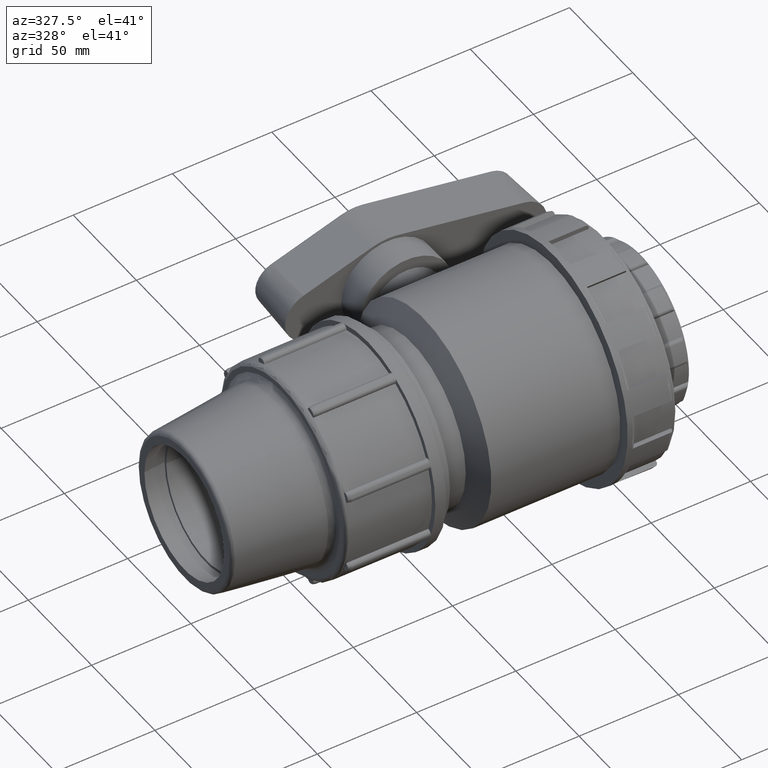
[diagram: clean part render]
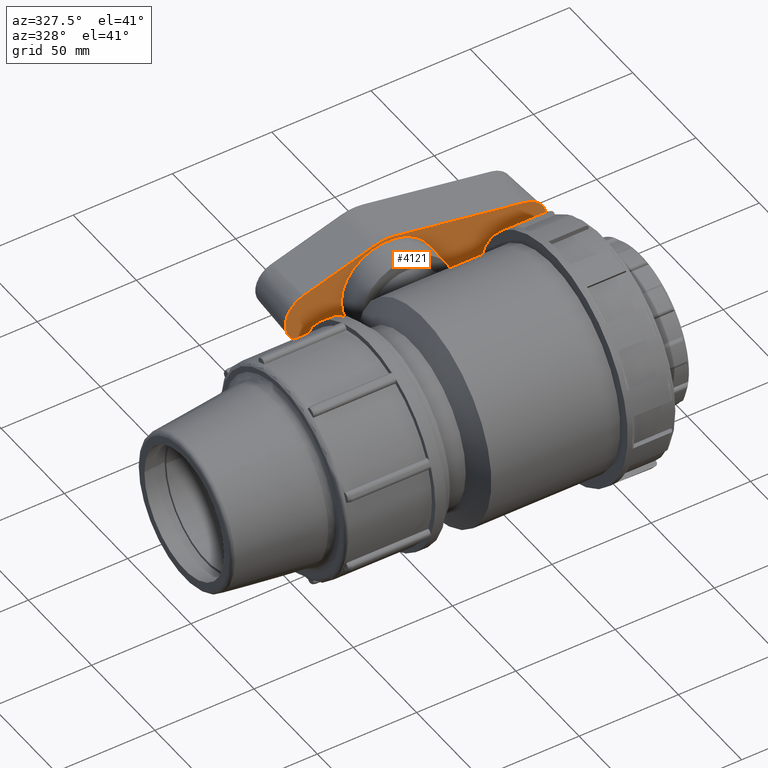
[diagram: same view with one face highlighted and labeled with its STEP entity id]
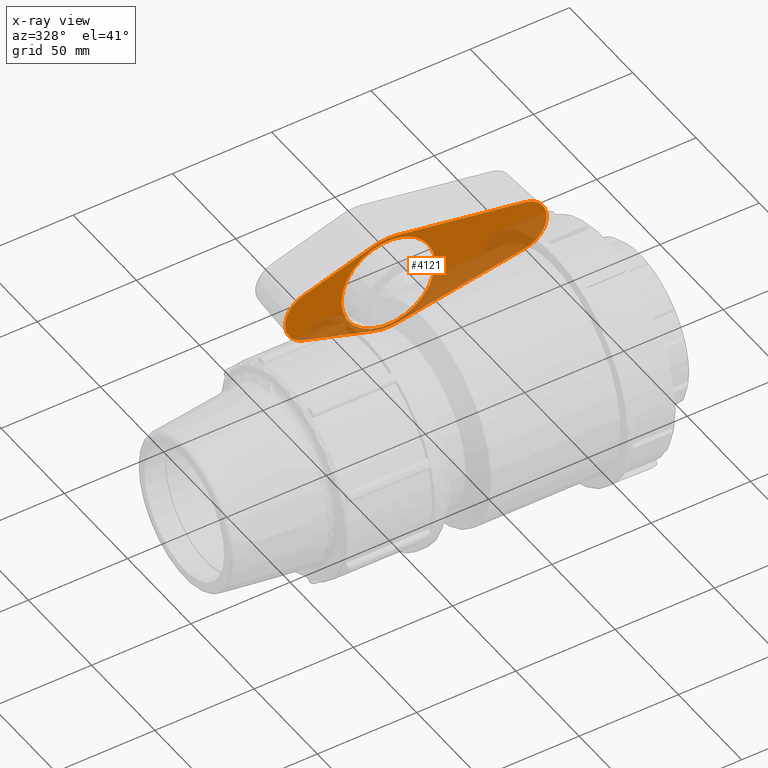
[diagram: x-ray of the same camera — body ghosted, the highlighted face saturated]
A machine part, auxiliary view. The second image highlights one B-rep face of the part: STEP entity #4121.
The next image is the same camera in x-ray: the body ghosted, the highlighted face saturated — about 40% of this face is hidden behind the body in this view.
In plain terms, the highlighted planar face has unit normal (-0, 1, 0).
Its self-contained STEP definition (entity closure, byte-faithful):
#43=FACE_BOUND('',#759,.T.);
#148=PLANE('',#4523);
#501=FACE_OUTER_BOUND('',#758,.T.);
#758=EDGE_LOOP('',(#3330,#3331,#3332,#3333,#3334,#3335,#3336,#3337));
#759=EDGE_LOOP('',(#3338));
#999=LINE('',#7641,#1227);
#1002=LINE('',#7649,#1230);
#1011=LINE('',#7680,#1239);
#1012=LINE('',#7683,#1240);
#1227=VECTOR('',#5407,65.6479245673464);
#1230=VECTOR('',#5416,65.6479245673464);
#1239=VECTOR('',#5449,36.8571566998867);
#1240=VECTOR('',#5452,36.8571566998867);
#1504=CIRCLE('',#4508,24.9888061510006);
#1505=CIRCLE('',#4511,13.1888061510006);
#1510=CIRCLE('',#4524,24.9888061510006);
#1511=CIRCLE('',#4525,13.1888061510006);
#1512=CIRCLE('',#4526,23.6);
#1838=VERTEX_POINT('',#7633);
#1839=VERTEX_POINT('',#7635);
#1840=VERTEX_POINT('',#7639);
#1841=VERTEX_POINT('',#7643);
#1842=VERTEX_POINT('',#7647);
#1851=VERTEX_POINT('',#7677);
#1852=VERTEX_POINT('',#7679);
#1853=VERTEX_POINT('',#7681);
#1854=VERTEX_POINT('',#7684);
#2378=EDGE_CURVE('',#1838,#1839,#1504,.T.);
#2381=EDGE_CURVE('',#1840,#1838,#999,.T.);
#2383=EDGE_CURVE('',#1841,#1840,#1505,.T.);
#2385=EDGE_CURVE('',#1842,#1841,#1002,.T.);
#2398=EDGE_CURVE('',#1851,#1842,#1510,.T.);
#2399=EDGE_CURVE('',#1852,#1851,#1011,.T.);
#2400=EDGE_CURVE('',#1853,#1852,#1511,.T.);
#2401=EDGE_CURVE('',#1839,#1853,#1012,.T.);
#2402=EDGE_CURVE('',#1854,#1854,#1512,.T.);
#3330=ORIENTED_EDGE('',*,*,#2381,.F.);
#3331=ORIENTED_EDGE('',*,*,#2383,.F.);
#3332=ORIENTED_EDGE('',*,*,#2385,.F.);
#3333=ORIENTED_EDGE('',*,*,#2398,.F.);
#3334=ORIENTED_EDGE('',*,*,#2399,.F.);
#3335=ORIENTED_EDGE('',*,*,#2400,.F.);
#3336=ORIENTED_EDGE('',*,*,#2401,.F.);
#3337=ORIENTED_EDGE('',*,*,#2378,.F.);
#3338=ORIENTED_EDGE('',*,*,#2402,.F.);
#4121=ADVANCED_FACE('',(#501,#43),#148,.F.);
#4508=AXIS2_PLACEMENT_3D('',#7636,#5401,#5402);
#4511=AXIS2_PLACEMENT_3D('',#7645,#5411,#5412);
#4523=AXIS2_PLACEMENT_3D('',#7676,#5445,#5446);
#4524=AXIS2_PLACEMENT_3D('',#7678,#5447,#5448);
#4525=AXIS2_PLACEMENT_3D('',#7682,#5450,#5451);
#4526=AXIS2_PLACEMENT_3D('',#7685,#5453,#5454);
#5401=DIRECTION('center_axis',(-2.97139982259774E-16,1.,0.));
#5402=DIRECTION('ref_axis',(1.,2.97139982259774E-16,0.));
#5407=DIRECTION('',(-0.984226755132629,-2.92453120559705E-16,-0.176911544227886));
#5411=DIRECTION('center_axis',(-2.97139982259774E-16,1.,0.));
#5412=DIRECTION('ref_axis',(1.,2.97139982259774E-16,0.));
#5416=DIRECTION('',(0.984226755132629,2.92453120559705E-16,-0.176911544227886));
#5445=DIRECTION('center_axis',(-4.45518824437604E-16,1.,0.));
#5446=DIRECTION('ref_axis',(0.,0.,1.));
#5447=DIRECTION('center_axis',(-2.97139982259774E-16,1.,0.));
#5448=DIRECTION('ref_axis',(1.,2.97139982259774E-16,0.));
#5449=DIRECTION('',(0.952381310074591,2.82990565580104E-16,0.304909560723514));
#5450=DIRECTION('center_axis',(-2.97139982259774E-16,1.,0.));
#5451=DIRECTION('ref_axis',(1.,2.97139982259774E-16,0.));
#5452=DIRECTION('',(-0.952381310074591,-2.82990565580104E-16,0.304909560723514));
#5453=DIRECTION('center_axis',(4.45518824437604E-16,-1.,0.));
#5454=DIRECTION('ref_axis',(-1.,0.,0.));
#7633=CARTESIAN_POINT('',(4.42080828458484,79.5,-24.5946515926376));
#7635=CARTESIAN_POINT('',(-7.61932590650664,79.5,-23.7988719392899));
#7636=CARTESIAN_POINT('Origin',(-4.44089209850063E-15,79.5,0.));
#7639=CARTESIAN_POINT('',(69.0332520626958,79.5000000000001,-12.9807758820726));
#7641=CARTESIAN_POINT('',(69.0332520626958,79.5,-12.9807758820726));
#7643=CARTESIAN_POINT('',(69.0332520626957,79.5,12.9807758820726));
#7645=CARTESIAN_POINT('Origin',(66.7,79.5,0.));
#7647=CARTESIAN_POINT('',(4.42080828458482,79.5,24.5946515926376));
#7649=CARTESIAN_POINT('',(4.42080828458482,79.5,24.5946515926376));
#7676=CARTESIAN_POINT('Origin',(66.6999982466264,79.5000000000001,1.93158412540157E-15));
#7677=CARTESIAN_POINT('',(-7.61932590650664,79.5,23.7988719392899));
#7678=CARTESIAN_POINT('Origin',(-4.44089209850063E-15,79.5,0.));
#7679=CARTESIAN_POINT('',(-42.7213930899692,79.5,12.5607724804098));
#7680=CARTESIAN_POINT('',(-42.7213930899692,79.5,12.5607724804098));
#7681=CARTESIAN_POINT('',(-42.7213930899692,79.5,-12.5607724804098));
#7682=CARTESIAN_POINT('Origin',(-38.7,79.5,0.));
#7683=CARTESIAN_POINT('',(-7.61932590650664,79.5,-23.7988719392899));
#7684=CARTESIAN_POINT('',(23.6,79.5,2.89016644598775E-15));
#7685=CARTESIAN_POINT('Origin',(-4.33824374099272E-15,79.5,0.));